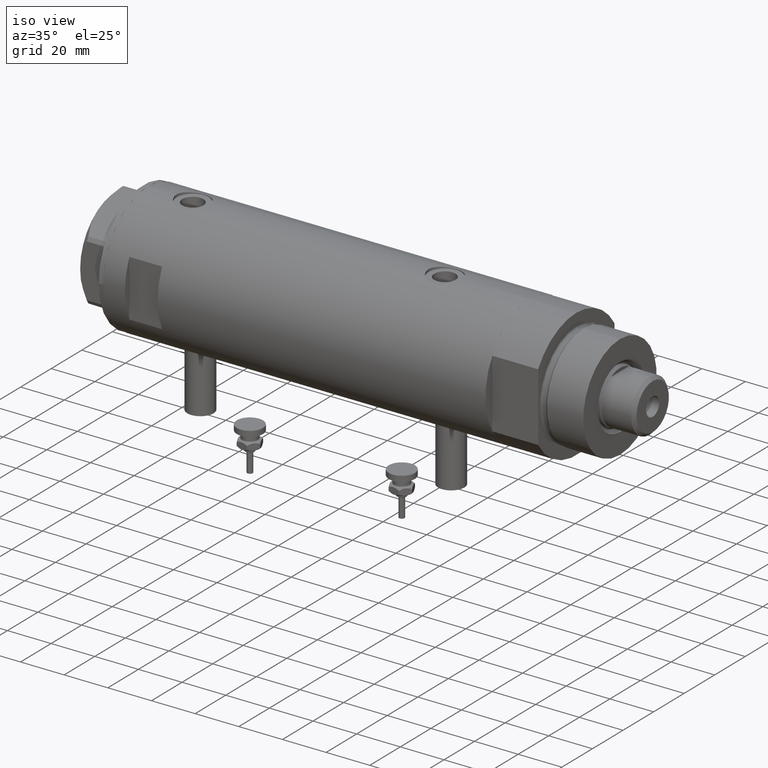
[diagram: clean part render]
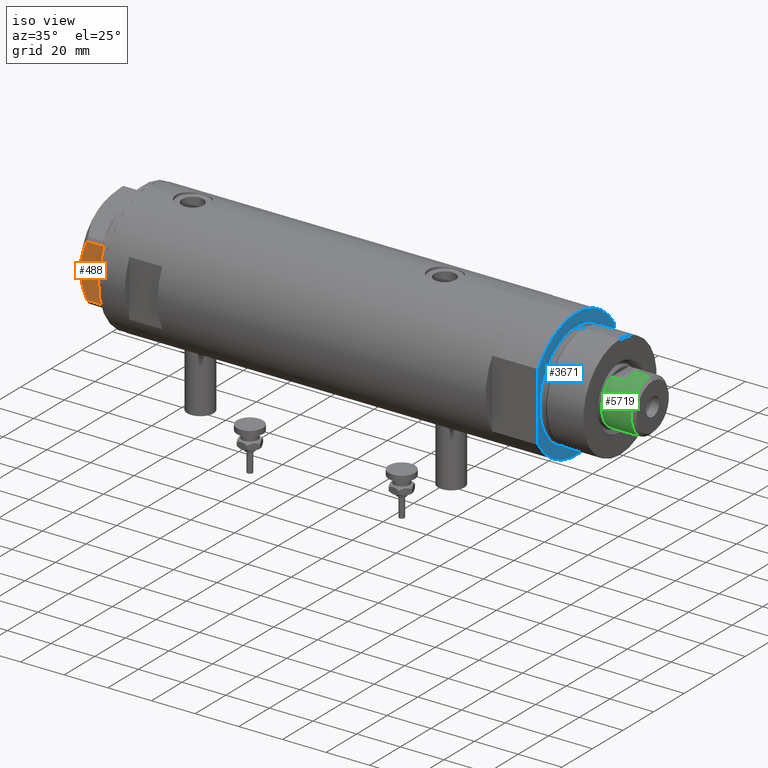
[diagram: same view with three faces highlighted in distinct colors, each labeled with its STEP entity id]
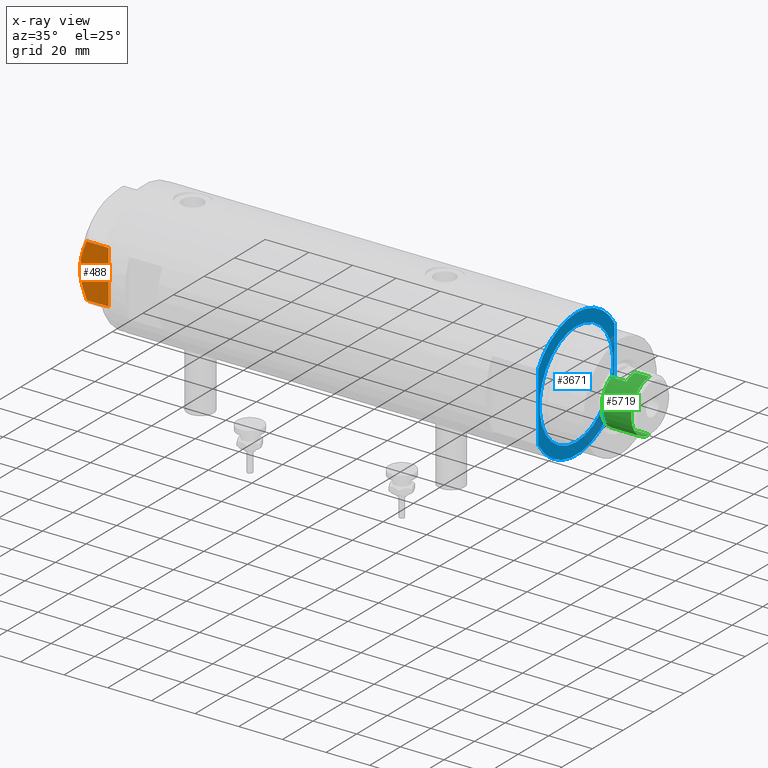
[diagram: x-ray of the same camera — body ghosted, the three highlighted faces saturated]
A machine part, iso view with three faces highlighted in distinct colors.
The next image is the same camera in x-ray (body ghosted, the three faces saturated) — at least one of them is partly hidden behind the body in this view.
Their STEP definitions:

[orange] entity #488 — the highlighted planar face has unit normal (-0, 1, -0).
#20 = CARTESIAN_POINT ( 'NONE',  ( -22.99999999999991473, -10.22738952213796715, 10.83247031367477398 ) ) ;
#227 = DIRECTION ( 'NONE',  ( 0.000000000000000000, 0.000000000000000000, -1.000000000000000000 ) ) ;
#251 = CARTESIAN_POINT ( 'NONE',  ( -22.99999999999999645, 13.27905619136132032, 0.000000000000000000 ) ) ;
#262 = DIRECTION ( 'NONE',  ( 1.000000000000000000, 3.527173405730720929E-15, -0.000000000000000000 ) ) ;
#320 = AXIS2_PLACEMENT_3D ( 'NONE', #2906, #262, #3898 ) ;
#483 = CARTESIAN_POINT ( 'NONE',  ( -23.00000000000004619, -8.112498833180673323E-14, 13.00000000000000000 ) ) ;
#488 = ADVANCED_FACE ( 'NONE', ( #3809 ), #3384, .F. ) ;
#503 = B_SPLINE_CURVE_WITH_KNOTS ( 'NONE', 3,
 ( #1745, #5826, #1244, #3160, #3976, #3579, #5320, #1775, #2614, #1331 ),
 .UNSPECIFIED., .F., .F.,
 ( 4, 2, 2, 2, 4 ),
 ( 0.03516523594057417712, 0.03831677594541236381, 0.03989254594783145369, 0.04146831595025054357, 0.04777139595992690307 ),
 .UNSPECIFIED. ) ;
#511 = CARTESIAN_POINT ( 'NONE',  ( -22.99999999999994316, -2.643615312305168441, 12.85430456063626714 ) ) ;
#520 = CARTESIAN_POINT ( 'NONE',  ( -22.99999999999990763, -12.15905619136148985, 13.00000000000000000 ) ) ;
#528 = EDGE_CURVE ( 'NONE', #4749, #3475, #1173, .T. ) ;
#686 = CARTESIAN_POINT ( 'NONE',  ( -22.99999999999990763, -12.15905619136149340, 9.983800287807616414 ) ) ;
#929 = ORIENTED_EDGE ( 'NONE', *, *, #528, .T. ) ;
#944 = VECTOR ( 'NONE', #5294, 1000.000000000000000 ) ;
#1097 = VECTOR ( 'NONE', #227, 1000.000000000000000 ) ;
#1135 = CARTESIAN_POINT ( 'NONE',  ( -22.99999999999999289, 12.15905619136132110, 9.983800287807621743 ) ) ;
#1173 = LINE ( 'NONE', #3866, #1097 ) ;
#1244 = CARTESIAN_POINT ( 'NONE',  ( -22.99999999999998579, 10.23890159976121517, 10.84081242829091707 ) ) ;
#1331 = CARTESIAN_POINT ( 'NONE',  ( -23.00000000000004619, -8.112498833180673323E-14, 13.00000000000000000 ) ) ;
#1370 = CARTESIAN_POINT ( 'NONE',  ( -22.99999999999994316, -1.063773509315741217, 12.98143808360682883 ) ) ;
#1434 = CARTESIAN_POINT ( 'NONE',  ( -22.99999999999992184, -8.252113629125281236, 11.58164206268022234 ) ) ;
#1745 = CARTESIAN_POINT ( 'NONE',  ( -22.99999999999999289, 12.15905619136132110, 9.983800287807621743 ) ) ;
#1775 = CARTESIAN_POINT ( 'NONE',  ( -22.99999999999996447, 4.194757081058973824, 12.70300035152520302 ) ) ;
#1822 = CARTESIAN_POINT ( 'NONE',  ( -22.99999999999992895, -4.203926054641974552, 12.64168122312250553 ) ) ;
#1872 = CARTESIAN_POINT ( 'NONE',  ( -22.99999999999999289, 12.15905619136131754, 0.000000000000000000 ) ) ;
#1879 = ORIENTED_EDGE ( 'NONE', *, *, #2636, .T. ) ;
#2116 = VERTEX_POINT ( 'NONE', #686 ) ;
#2207 = ORIENTED_EDGE ( 'NONE', *, *, #4834, .F. ) ;
#2209 = B_SPLINE_CURVE_WITH_KNOTS ( 'NONE', 3,
 ( #483, #2309, #1370, #4974, #511, #1822, #5066, #3150, #1434, #3688, #20, #4086, #4523, #3175 ),
 .UNSPECIFIED., .F., .F.,
 ( 4, 2, 2, 2, 2, 2, 4 ),
 ( 0.04777139595992690307, 0.04934380568070230455, 0.05091621540147769909, 0.05406103484302849510, 0.05720585428457929111, 0.05877826400535468565, 0.06035067372613008019 ),
 .UNSPECIFIED. ) ;
#2227 = ORIENTED_EDGE ( 'NONE', *, *, #3029, .F. ) ;
#2309 = CARTESIAN_POINT ( 'NONE',  ( -22.99999999999995381, -0.5295934231897790889, 13.00000000000009237 ) ) ;
#2338 = CARTESIAN_POINT ( 'NONE',  ( -22.99999999999990763, -12.15905619136148985, 0.000000000000000000 ) ) ;
#2346 = CARTESIAN_POINT ( 'NONE',  ( -23.00000000000004619, -8.112498833180673323E-14, 13.00000000000000000 ) ) ;
#2614 = CARTESIAN_POINT ( 'NONE',  ( -22.99999999999996092, 2.122900714018063795, 13.00000000000009592 ) ) ;
#2636 = EDGE_CURVE ( 'NONE', #4169, #2116, #2793, .T. ) ;
#2637 = VECTOR ( 'NONE', #5908, 1000.000000000000000 ) ;
#2793 = LINE ( 'NONE', #520, #2637 ) ;
#2809 = ORIENTED_EDGE ( 'NONE', *, *, #4795, .T. ) ;
#2906 = CARTESIAN_POINT ( 'NONE',  ( -22.99999999999999645, 13.27905619136132032, 13.00000000000000000 ) ) ;
#3029 = EDGE_CURVE ( 'NONE', #5015, #2116, #2209, .T. ) ;
#3150 = CARTESIAN_POINT ( 'NONE',  ( -22.99999999999992184, -7.253003311474400583, 11.90327681034764140 ) ) ;
#3160 = CARTESIAN_POINT ( 'NONE',  ( -22.99999999999997158, 8.748091966971372813, 11.39681897828457302 ) ) ;
#3175 = CARTESIAN_POINT ( 'NONE',  ( -22.99999999999990763, -12.15905619136149340, 9.983800287807616414 ) ) ;
#3384 = PLANE ( 'NONE',  #320 ) ;
#3475 = VERTEX_POINT ( 'NONE', #1872 ) ;
#3579 = CARTESIAN_POINT ( 'NONE',  ( -22.99999999999997513, 7.239756182922193695, 11.89218606342285156 ) ) ;
#3688 = CARTESIAN_POINT ( 'NONE',  ( -22.99999999999991829, -9.734726261263313418, 11.02892470009565251 ) ) ;
#3809 = FACE_OUTER_BOUND ( 'NONE', #4016, .T. ) ;
#3866 = CARTESIAN_POINT ( 'NONE',  ( -22.99999999999999289, 12.15905619136131754, 13.00000000000000000 ) ) ;
#3898 = DIRECTION ( 'NONE',  ( -3.527173405730720929E-15, 1.000000000000000000, 0.000000000000000000 ) ) ;
#3976 = CARTESIAN_POINT ( 'NONE',  ( -22.99999999999997513, 8.246028007352348865, 11.57113180864690705 ) ) ;
#4016 = EDGE_LOOP ( 'NONE', ( #2207, #929, #2809, #1879, #2227 ) ) ;
#4086 = CARTESIAN_POINT ( 'NONE',  ( -22.99999999999990763, -11.20155944044818241, 10.42110268263274264 ) ) ;
#4169 = VERTEX_POINT ( 'NONE', #2338 ) ;
#4523 = CARTESIAN_POINT ( 'NONE',  ( -22.99999999999991473, -11.68282849742337248, 10.20637235269541776 ) ) ;
#4749 = VERTEX_POINT ( 'NONE', #1135 ) ;
#4795 = EDGE_CURVE ( 'NONE', #3475, #4169, #5625, .T. ) ;
#4834 = EDGE_CURVE ( 'NONE', #4749, #5015, #503, .T. ) ;
#4974 = CARTESIAN_POINT ( 'NONE',  ( -22.99999999999993250, -2.119709279061928964, 12.90853521217319688 ) ) ;
#5015 = VERTEX_POINT ( 'NONE', #2346 ) ;
#5066 = CARTESIAN_POINT ( 'NONE',  ( -22.99999999999993250, -5.228918809624134134, 12.43333703384985611 ) ) ;
#5294 = DIRECTION ( 'NONE',  ( 3.527173405730720141E-15, -1.000000000000000000, 0.000000000000000000 ) ) ;
#5320 = CARTESIAN_POINT ( 'NONE',  ( -22.99999999999997513, 6.734330413511418811, 12.03938974125266981 ) ) ;
#5625 = LINE ( 'NONE', #251, #944 ) ;
#5826 = CARTESIAN_POINT ( 'NONE',  ( -22.99999999999998579, 11.20825071633914582, 10.42817330637845430 ) ) ;
#5908 = DIRECTION ( 'NONE',  ( 0.000000000000000000, 0.000000000000000000, 1.000000000000000000 ) ) ;

[blue] entity #3671 — the highlighted planar face has unit normal (1, 0, -0).
#47 = AXIS2_PLACEMENT_3D ( 'NONE', #4095, #1444, #998 ) ;
#136 = VERTEX_POINT ( 'NONE', #5842 ) ;
#233 = CARTESIAN_POINT ( 'NONE',  ( -15.66045976336583401, -25.00000000000000000, 21.00000000000000000 ) ) ;
#242 = DIRECTION ( 'NONE',  ( 1.000000000000000000, 0.000000000000000000, 0.000000000000000000 ) ) ;
#328 = CARTESIAN_POINT ( 'NONE',  ( 0.000000000000000000, 0.000000000000000000, 21.00000000000000000 ) ) ;
#362 = VECTOR ( 'NONE', #2065, 1000.000000000000000 ) ;
#466 = CARTESIAN_POINT ( 'NONE',  ( 0.000000000000000000, 0.000000000000000000, 21.00000000000000000 ) ) ;
#491 = CARTESIAN_POINT ( 'NONE',  ( 15.66045976336583045, 24.99999999999999645, 20.99999999999999645 ) ) ;
#639 = CARTESIAN_POINT ( 'NONE',  ( 15.66045976336583045, -25.00000000000000000, 21.00000000000000355 ) ) ;
#644 = CIRCLE ( 'NONE', #1396, 29.50000000000000355 ) ;
#850 = CARTESIAN_POINT ( 'NONE',  ( -15.66045976336583045, -24.99999999999999645, 20.99999999999999645 ) ) ;
#872 = VERTEX_POINT ( 'NONE', #4447 ) ;
#998 = DIRECTION ( 'NONE',  ( 1.000000000000000000, 0.000000000000000000, 0.000000000000000000 ) ) ;
#1028 = CARTESIAN_POINT ( 'NONE',  ( 0.000000000000000000, 0.000000000000000000, 21.00000000000000000 ) ) ;
#1163 = EDGE_CURVE ( 'NONE', #1736, #2693, #2716, .T. ) ;
#1396 = AXIS2_PLACEMENT_3D ( 'NONE', #3842, #5604, #5575 ) ;
#1444 = DIRECTION ( 'NONE',  ( -0.000000000000000000, -0.000000000000000000, -1.000000000000000000 ) ) ;
#1494 = DIRECTION ( 'NONE',  ( 1.000000000000000000, 0.000000000000000000, 0.000000000000000000 ) ) ;
#1593 = PLANE ( 'NONE',  #4940 ) ;
#1594 = ORIENTED_EDGE ( 'NONE', *, *, #2738, .T. ) ;
#1647 = DIRECTION ( 'NONE',  ( 0.000000000000000000, 0.000000000000000000, 1.000000000000000000 ) ) ;
#1664 = AXIS2_PLACEMENT_3D ( 'NONE', #466, #2703, #4538 ) ;
#1736 = VERTEX_POINT ( 'NONE', #639 ) ;
#1793 = EDGE_CURVE ( 'NONE', #136, #872, #3406, .T. ) ;
#1875 = ORIENTED_EDGE ( 'NONE', *, *, #4520, .F. ) ;
#1992 = VERTEX_POINT ( 'NONE', #5109 ) ;
#2025 = FACE_OUTER_BOUND ( 'NONE', #2285, .T. ) ;
#2065 = DIRECTION ( 'NONE',  ( -1.000000000000000000, -0.000000000000000000, -0.000000000000000000 ) ) ;
#2124 = LINE ( 'NONE', #2999, #4009 ) ;
#2248 = ORIENTED_EDGE ( 'NONE', *, *, #1793, .T. ) ;
#2285 = EDGE_LOOP ( 'NONE', ( #1875, #2786, #3833, #3953, #5194 ) ) ;
#2561 = CARTESIAN_POINT ( 'NONE',  ( 0.000000000000000000, 0.000000000000000000, 21.00000000000000000 ) ) ;
#2575 = VERTEX_POINT ( 'NONE', #850 ) ;
#2693 = VERTEX_POINT ( 'NONE', #491 ) ;
#2703 = DIRECTION ( 'NONE',  ( 0.000000000000000000, 0.000000000000000000, 1.000000000000000000 ) ) ;
#2706 = LINE ( 'NONE', #233, #362 ) ;
#2716 = CIRCLE ( 'NONE', #1664, 29.50000000000000355 ) ;
#2738 = EDGE_CURVE ( 'NONE', #872, #136, #3698, .T. ) ;
#2786 = ORIENTED_EDGE ( 'NONE', *, *, #1163, .T. ) ;
#2857 = DIRECTION ( 'NONE',  ( -0.000000000000000000, -0.000000000000000000, -1.000000000000000000 ) ) ;
#2958 = DIRECTION ( 'NONE',  ( 1.000000000000000000, 0.000000000000000000, -0.000000000000000000 ) ) ;
#2999 = CARTESIAN_POINT ( 'NONE',  ( -15.66045976336583401, 25.00000000000000000, 21.00000000000000000 ) ) ;
#3046 = CIRCLE ( 'NONE', #5429, 29.50000000000000355 ) ;
#3166 = EDGE_CURVE ( 'NONE', #1992, #2575, #644, .T. ) ;
#3403 = FACE_BOUND ( 'NONE', #4286, .T. ) ;
#3406 = CIRCLE ( 'NONE', #4926, 24.00000000000000000 ) ;
#3671 = ADVANCED_FACE ( 'NONE', ( #3403, #2025 ), #1593, .T. ) ;
#3698 = CIRCLE ( 'NONE', #47, 24.00000000000000000 ) ;
#3833 = ORIENTED_EDGE ( 'NONE', *, *, #5728, .F. ) ;
#3842 = CARTESIAN_POINT ( 'NONE',  ( 0.000000000000000000, 0.000000000000000000, 21.00000000000000000 ) ) ;
#3953 = ORIENTED_EDGE ( 'NONE', *, *, #4089, .T. ) ;
#4009 = VECTOR ( 'NONE', #4885, 1000.000000000000000 ) ;
#4089 = EDGE_CURVE ( 'NONE', #4216, #1992, #3046, .T. ) ;
#4095 = CARTESIAN_POINT ( 'NONE',  ( 0.000000000000000000, 0.000000000000000000, 21.00000000000000000 ) ) ;
#4216 = VERTEX_POINT ( 'NONE', #5458 ) ;
#4286 = EDGE_LOOP ( 'NONE', ( #1594, #2248 ) ) ;
#4447 = CARTESIAN_POINT ( 'NONE',  ( 24.00000000000000000, 0.000000000000000000, 21.00000000000000000 ) ) ;
#4520 = EDGE_CURVE ( 'NONE', #1736, #2575, #2706, .T. ) ;
#4538 = DIRECTION ( 'NONE',  ( 1.000000000000000000, 0.000000000000000000, 0.000000000000000000 ) ) ;
#4885 = DIRECTION ( 'NONE',  ( 1.000000000000000000, 0.000000000000000000, 0.000000000000000000 ) ) ;
#4926 = AXIS2_PLACEMENT_3D ( 'NONE', #1028, #2857, #1494 ) ;
#4940 = AXIS2_PLACEMENT_3D ( 'NONE', #2561, #5193, #2958 ) ;
#5109 = CARTESIAN_POINT ( 'NONE',  ( -29.50000000000000355, 0.000000000000000000, 21.00000000000000000 ) ) ;
#5193 = DIRECTION ( 'NONE',  ( 0.000000000000000000, 0.000000000000000000, 1.000000000000000000 ) ) ;
#5194 = ORIENTED_EDGE ( 'NONE', *, *, #3166, .T. ) ;
#5429 = AXIS2_PLACEMENT_3D ( 'NONE', #328, #1647, #242 ) ;
#5458 = CARTESIAN_POINT ( 'NONE',  ( -15.66045976336583045, 24.99999999999999645, 21.00000000000000355 ) ) ;
#5575 = DIRECTION ( 'NONE',  ( 1.000000000000000000, 0.000000000000000000, 0.000000000000000000 ) ) ;
#5604 = DIRECTION ( 'NONE',  ( 0.000000000000000000, 0.000000000000000000, 1.000000000000000000 ) ) ;
#5728 = EDGE_CURVE ( 'NONE', #4216, #2693, #2124, .T. ) ;
#5842 = CARTESIAN_POINT ( 'NONE',  ( -24.00000000000000000, 2.939152317953647894E-15, 21.00000000000000000 ) ) ;

[green] entity #5719 — the highlighted cylindrical surface (edge-blend (fillet) strip) has radius 12 mm, axis along (-1, -0, 0).
#2 = LINE ( 'NONE', #3664, #3231 ) ;
#3 = CARTESIAN_POINT ( 'NONE',  ( 12.00000000000000355, 1.469576158976824342E-15, 199.6999999999999886 ) ) ;
#51 = CARTESIAN_POINT ( 'NONE',  ( 0.000000000000000000, 0.000000000000000000, 199.6999999999999886 ) ) ;
#141 = EDGE_CURVE ( 'NONE', #4624, #1171, #2155, .T. ) ;
#293 = EDGE_CURVE ( 'NONE', #1171, #1186, #5315, .T. ) ;
#295 = VERTEX_POINT ( 'NONE', #4433 ) ;
#406 = ORIENTED_EDGE ( 'NONE', *, *, #3814, .F. ) ;
#493 = DIRECTION ( 'NONE',  ( -0.000000000000000000, -0.000000000000000000, -1.000000000000000000 ) ) ;
#588 = CARTESIAN_POINT ( 'NONE',  ( 10.48861764008966269, -5.830000000000016058, 192.6999999999999886 ) ) ;
#774 = CARTESIAN_POINT ( 'NONE',  ( 0.000000000000000000, 0.000000000000000000, 199.6999999999999886 ) ) ;
#780 = ORIENTED_EDGE ( 'NONE', *, *, #1565, .T. ) ;
#828 = CARTESIAN_POINT ( 'NONE',  ( -12.00000000000000000, 0.000000000000000000, 199.6999999999999886 ) ) ;
#866 = DIRECTION ( 'NONE',  ( -0.000000000000000000, -0.000000000000000000, -1.000000000000000000 ) ) ;
#1171 = VERTEX_POINT ( 'NONE', #5013 ) ;
#1186 = VERTEX_POINT ( 'NONE', #588 ) ;
#1271 = EDGE_LOOP ( 'NONE', ( #3789, #780, #5482, #1450, #1549, #2129, #406, #5123 ) ) ;
#1315 = DIRECTION ( 'NONE',  ( 1.000000000000000000, 0.000000000000000000, 0.000000000000000000 ) ) ;
#1317 = DIRECTION ( 'NONE',  ( 1.000000000000000000, 0.000000000000000000, 0.000000000000000000 ) ) ;
#1381 = AXIS2_PLACEMENT_3D ( 'NONE', #5926, #1411, #5432 ) ;
#1411 = DIRECTION ( 'NONE',  ( 0.000000000000000000, 0.000000000000000000, -1.000000000000000000 ) ) ;
#1450 = ORIENTED_EDGE ( 'NONE', *, *, #5357, .T. ) ;
#1549 = ORIENTED_EDGE ( 'NONE', *, *, #141, .T. ) ;
#1565 = EDGE_CURVE ( 'NONE', #3467, #295, #3982, .T. ) ;
#1613 = CIRCLE ( 'NONE', #4777, 12.00000000000000178 ) ;
#1614 = FACE_OUTER_BOUND ( 'NONE', #1271, .T. ) ;
#1685 = AXIS2_PLACEMENT_3D ( 'NONE', #51, #5925, #1317 ) ;
#1701 = CYLINDRICAL_SURFACE ( 'NONE', #3236, 12.00000000000000000 ) ;
#1722 = DIRECTION ( 'NONE',  ( -0.000000000000000000, -0.000000000000000000, -1.000000000000000000 ) ) ;
#1761 = DIRECTION ( 'NONE',  ( 0.000000000000000000, 0.000000000000000000, 1.000000000000000000 ) ) ;
#1768 = CARTESIAN_POINT ( 'NONE',  ( 0.000000000000000000, 0.000000000000000000, 199.6999999999999886 ) ) ;
#1980 = EDGE_CURVE ( 'NONE', #3467, #5055, #4051, .T. ) ;
#2049 = AXIS2_PLACEMENT_3D ( 'NONE', #2602, #1761, #1315 ) ;
#2129 = ORIENTED_EDGE ( 'NONE', *, *, #293, .T. ) ;
#2155 = LINE ( 'NONE', #3148, #3492 ) ;
#2602 = CARTESIAN_POINT ( 'NONE',  ( 0.000000000000000000, 0.000000000000000000, 192.6999999999999886 ) ) ;
#2656 = VECTOR ( 'NONE', #1722, 1000.000000000000000 ) ;
#2806 = VERTEX_POINT ( 'NONE', #5158 ) ;
#3069 = DIRECTION ( 'NONE',  ( 0.000000000000000000, 0.000000000000000000, 1.000000000000000000 ) ) ;
#3128 = EDGE_CURVE ( 'NONE', #5057, #5055, #4936, .T. ) ;
#3148 = CARTESIAN_POINT ( 'NONE',  ( -10.48861764008966091, -5.830000000000000959, 199.6999999999999886 ) ) ;
#3231 = VECTOR ( 'NONE', #493, 1000.000000000000000 ) ;
#3236 = AXIS2_PLACEMENT_3D ( 'NONE', #774, #4380, #5841 ) ;
#3467 = VERTEX_POINT ( 'NONE', #5361 ) ;
#3492 = VECTOR ( 'NONE', #866, 1000.000000000000000 ) ;
#3664 = CARTESIAN_POINT ( 'NONE',  ( 10.48861764008966446, -5.829999999999997407, 199.6999999999999886 ) ) ;
#3677 = DIRECTION ( 'NONE',  ( -0.000000000000000000, -0.000000000000000000, -1.000000000000000000 ) ) ;
#3742 = CARTESIAN_POINT ( 'NONE',  ( -10.48861764008966091, -5.830000000000003624, 199.6999999999999886 ) ) ;
#3789 = ORIENTED_EDGE ( 'NONE', *, *, #1980, .F. ) ;
#3814 = EDGE_CURVE ( 'NONE', #5057, #1186, #2, .T. ) ;
#3982 = CIRCLE ( 'NONE', #1381, 12.00000000000000000 ) ;
#4051 = LINE ( 'NONE', #5082, #5797 ) ;
#4346 = LINE ( 'NONE', #828, #2656 ) ;
#4380 = DIRECTION ( 'NONE',  ( -0.000000000000000000, -0.000000000000000000, -1.000000000000000000 ) ) ;
#4381 = EDGE_CURVE ( 'NONE', #295, #2806, #4346, .T. ) ;
#4433 = CARTESIAN_POINT ( 'NONE',  ( -12.00000000000000000, 0.000000000000000000, 206.2999999999999829 ) ) ;
#4624 = VERTEX_POINT ( 'NONE', #3742 ) ;
#4777 = AXIS2_PLACEMENT_3D ( 'NONE', #1768, #3069, #5848 ) ;
#4936 = CIRCLE ( 'NONE', #1685, 12.00000000000000178 ) ;
#5010 = CARTESIAN_POINT ( 'NONE',  ( 10.48861764008966446, -5.829999999999997407, 199.6999999999999886 ) ) ;
#5013 = CARTESIAN_POINT ( 'NONE',  ( -10.48861764008966091, -5.830000000000020499, 192.6999999999999886 ) ) ;
#5055 = VERTEX_POINT ( 'NONE', #3 ) ;
#5057 = VERTEX_POINT ( 'NONE', #5010 ) ;
#5082 = CARTESIAN_POINT ( 'NONE',  ( 12.00000000000000000, 1.469576158976823947E-15, 199.6999999999999886 ) ) ;
#5123 = ORIENTED_EDGE ( 'NONE', *, *, #3128, .T. ) ;
#5158 = CARTESIAN_POINT ( 'NONE',  ( -12.00000000000000355, 0.000000000000000000, 199.6999999999999886 ) ) ;
#5315 = CIRCLE ( 'NONE', #2049, 12.00000000000000000 ) ;
#5357 = EDGE_CURVE ( 'NONE', #2806, #4624, #1613, .T. ) ;
#5361 = CARTESIAN_POINT ( 'NONE',  ( 12.00000000000000000, 1.469576158976823947E-15, 206.2999999999999829 ) ) ;
#5432 = DIRECTION ( 'NONE',  ( 1.000000000000000000, 0.000000000000000000, 0.000000000000000000 ) ) ;
#5482 = ORIENTED_EDGE ( 'NONE', *, *, #4381, .T. ) ;
#5719 = ADVANCED_FACE ( 'NONE', ( #1614 ), #1701, .T. ) ;
#5797 = VECTOR ( 'NONE', #3677, 1000.000000000000000 ) ;
#5841 = DIRECTION ( 'NONE',  ( -1.000000000000000000, 0.000000000000000000, 0.000000000000000000 ) ) ;
#5848 = DIRECTION ( 'NONE',  ( 1.000000000000000000, 0.000000000000000000, 0.000000000000000000 ) ) ;
#5925 = DIRECTION ( 'NONE',  ( 0.000000000000000000, 0.000000000000000000, 1.000000000000000000 ) ) ;
#5926 = CARTESIAN_POINT ( 'NONE',  ( 0.000000000000000000, 0.000000000000000000, 206.2999999999999829 ) ) ;